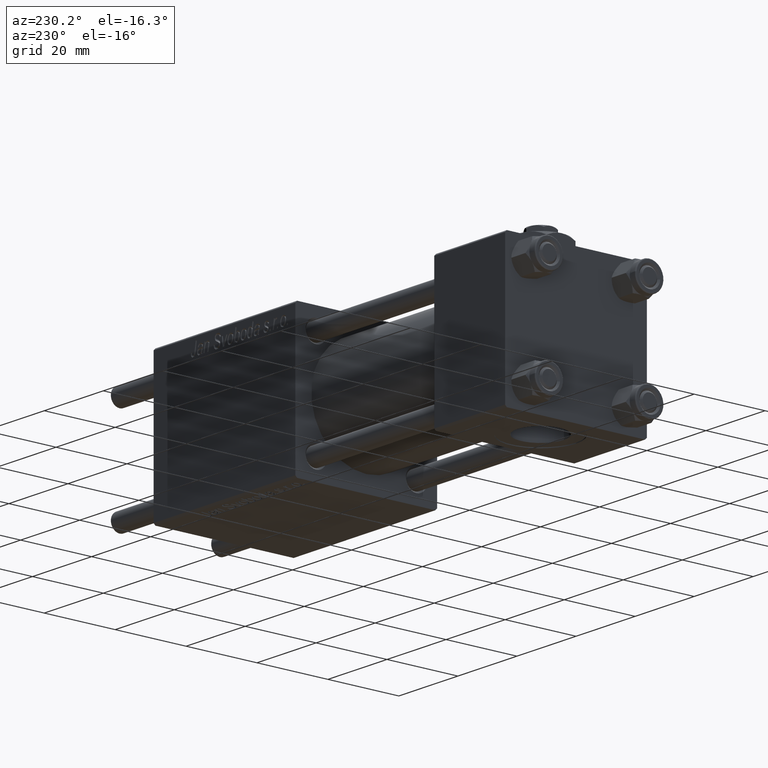
[diagram: clean part render]
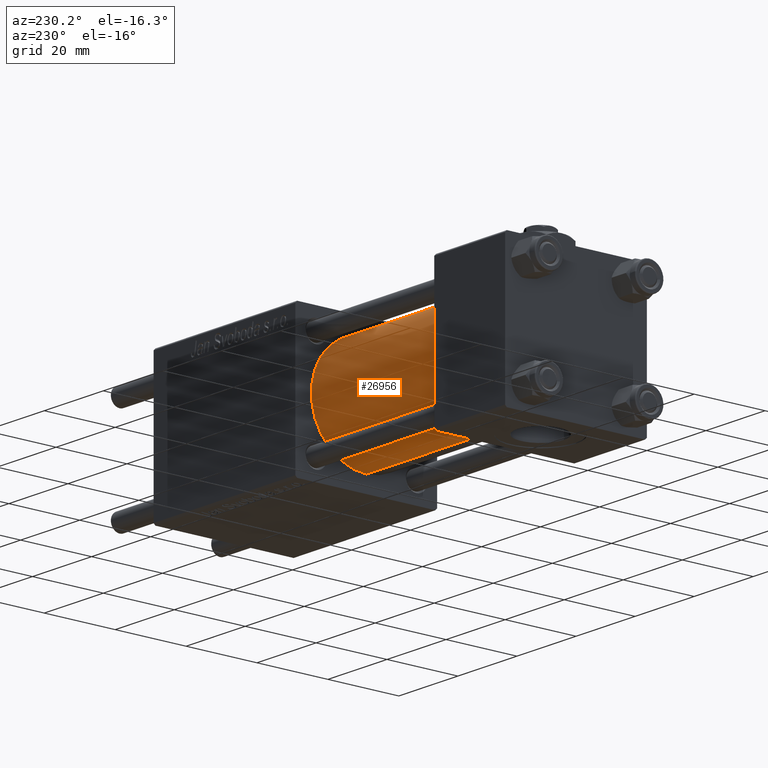
[diagram: same view with one face highlighted and labeled with its STEP entity id]
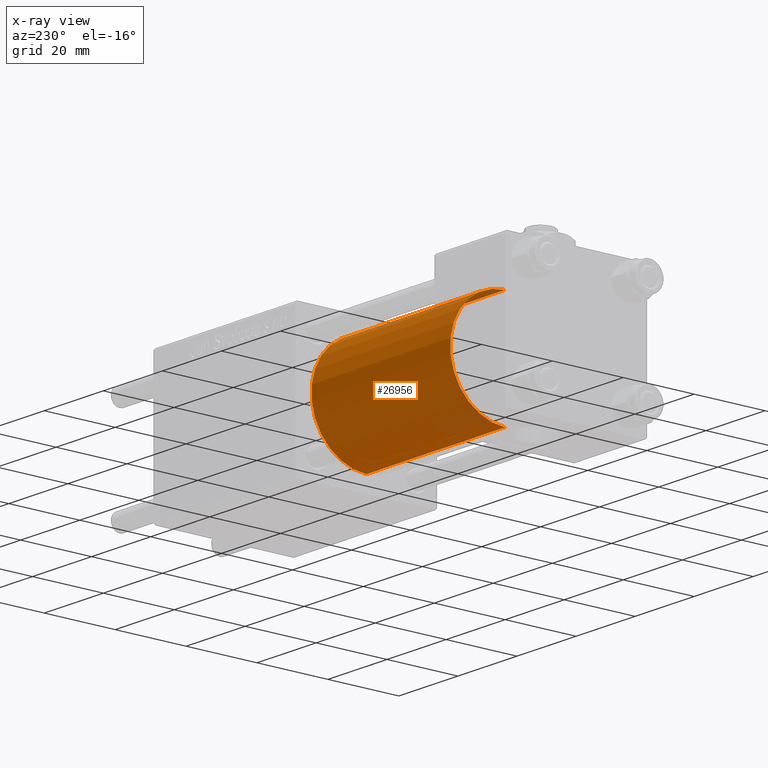
[diagram: x-ray of the same camera — body ghosted, the highlighted face saturated]
A machine part, auxiliary view. The second image highlights one B-rep face of the part: STEP entity #26956.
The next image is the same camera in x-ray: the body ghosted, the highlighted face saturated — about 5% of this face is hidden behind the body in this view.
In plain terms, the highlighted cylindrical surface (partial cylindrical patch) has radius 15.5 mm, axis along (-1, -0, -0).
Its self-contained STEP definition (entity closure, byte-faithful):
#732 = AXIS2_PLACEMENT_3D ( 'NONE', #6294, #37638, #1875 ) ;
#1092 = CARTESIAN_POINT ( 'NONE',  ( 71.00000000000001421, -7.038826752868131828E-16, -15.50000000000000000 ) ) ;
#1875 = DIRECTION ( 'NONE',  ( 0.000000000000000000, 0.000000000000000000, -1.000000000000000000 ) ) ;
#5298 = AXIS2_PLACEMENT_3D ( 'NONE', #13350, #31361, #49381 ) ;
#6294 = CARTESIAN_POINT ( 'NONE',  ( 71.00000000000001421, -2.602085213965210642E-15, 0.000000000000000000 ) ) ;
#7784 = ORIENTED_EDGE ( 'NONE', *, *, #20425, .T. ) ;
#8158 = CARTESIAN_POINT ( 'NONE',  ( 71.00000000000001421, -2.602085213965210642E-15, 0.000000000000000000 ) ) ;
#9187 = LINE ( 'NONE', #36082, #21613 ) ;
#10824 = EDGE_CURVE ( 'NONE', #13070, #51923, #31888, .T. ) ;
#12090 = EDGE_CURVE ( 'NONE', #51923, #55619, #33368, .T. ) ;
#13070 = VERTEX_POINT ( 'NONE', #1092 ) ;
#13218 = CARTESIAN_POINT ( 'NONE',  ( 71.00000000000001421, -2.602085213965210642E-15, 15.50000000000000000 ) ) ;
#13350 = CARTESIAN_POINT ( 'NONE',  ( 24.00000000000000000, -2.602085213965210642E-15, 0.000000000000000000 ) ) ;
#17044 = CYLINDRICAL_SURFACE ( 'NONE', #30082, 15.50000000000000000 ) ;
#20425 = EDGE_CURVE ( 'NONE', #31811, #55619, #30799, .T. ) ;
#21613 = VECTOR ( 'NONE', #45228, 1000.000000000000000 ) ;
#24194 = DIRECTION ( 'NONE',  ( -1.000000000000000000, -0.000000000000000000, -0.000000000000000000 ) ) ;
#24548 = CARTESIAN_POINT ( 'NONE',  ( 24.00000000000000000, -7.038826752868131828E-16, -15.50000000000000000 ) ) ;
#26168 = DIRECTION ( 'NONE',  ( -1.000000000000000000, -0.000000000000000000, -0.000000000000000000 ) ) ;
#26956 = ADVANCED_FACE ( 'NONE', ( #57518 ), #17044, .T. ) ;
#29499 = EDGE_CURVE ( 'NONE', #13070, #31811, #9187, .T. ) ;
#30078 = VECTOR ( 'NONE', #24194, 1000.000000000000000 ) ;
#30082 = AXIS2_PLACEMENT_3D ( 'NONE', #8158, #26168, #49794 ) ;
#30799 = CIRCLE ( 'NONE', #5298, 15.50000000000000000 ) ;
#31361 = DIRECTION ( 'NONE',  ( 1.000000000000000000, 0.000000000000000000, 0.000000000000000000 ) ) ;
#31811 = VERTEX_POINT ( 'NONE', #24548 ) ;
#31888 = CIRCLE ( 'NONE', #732, 15.50000000000000000 ) ;
#32397 = ORIENTED_EDGE ( 'NONE', *, *, #10824, .F. ) ;
#33368 = LINE ( 'NONE', #47530, #30078 ) ;
#36082 = CARTESIAN_POINT ( 'NONE',  ( 71.00000000000001421, -7.038826752868131828E-16, -15.50000000000000000 ) ) ;
#37638 = DIRECTION ( 'NONE',  ( 1.000000000000000000, 0.000000000000000000, 0.000000000000000000 ) ) ;
#41264 = ORIENTED_EDGE ( 'NONE', *, *, #12090, .F. ) ;
#41932 = CARTESIAN_POINT ( 'NONE',  ( 24.00000000000000000, -2.602085213965210642E-15, 15.50000000000000000 ) ) ;
#45228 = DIRECTION ( 'NONE',  ( -1.000000000000000000, -0.000000000000000000, -0.000000000000000000 ) ) ;
#47530 = CARTESIAN_POINT ( 'NONE',  ( 71.00000000000001421, -2.602085213965210642E-15, 15.50000000000000000 ) ) ;
#49381 = DIRECTION ( 'NONE',  ( 0.000000000000000000, 0.000000000000000000, 1.000000000000000000 ) ) ;
#49794 = DIRECTION ( 'NONE',  ( 0.000000000000000000, 0.000000000000000000, 1.000000000000000000 ) ) ;
#51001 = ORIENTED_EDGE ( 'NONE', *, *, #29499, .T. ) ;
#51923 = VERTEX_POINT ( 'NONE', #13218 ) ;
#55619 = VERTEX_POINT ( 'NONE', #41932 ) ;
#56071 = EDGE_LOOP ( 'NONE', ( #32397, #51001, #7784, #41264 ) ) ;
#57518 = FACE_OUTER_BOUND ( 'NONE', #56071, .T. ) ;